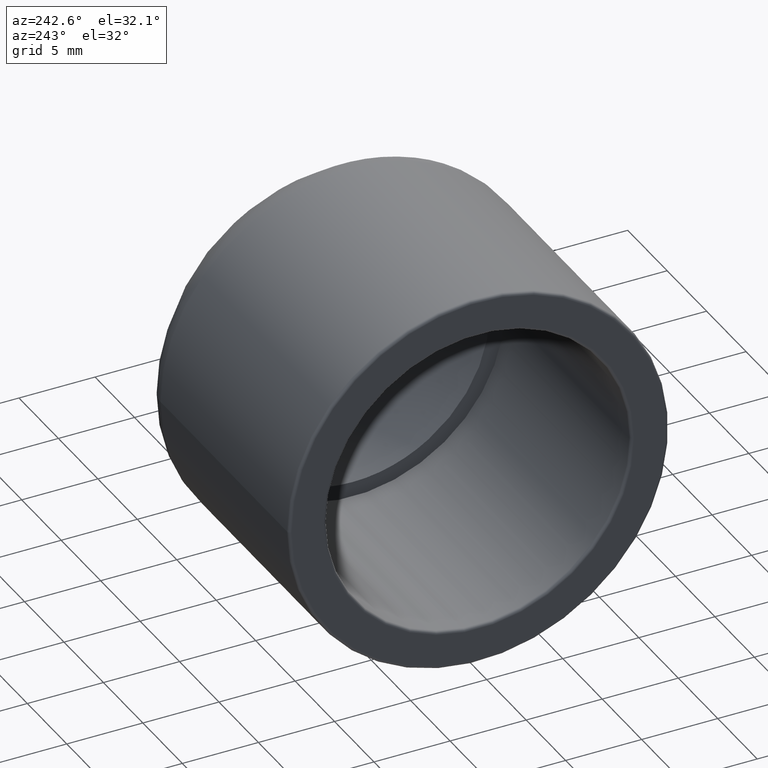
[diagram: clean part render]
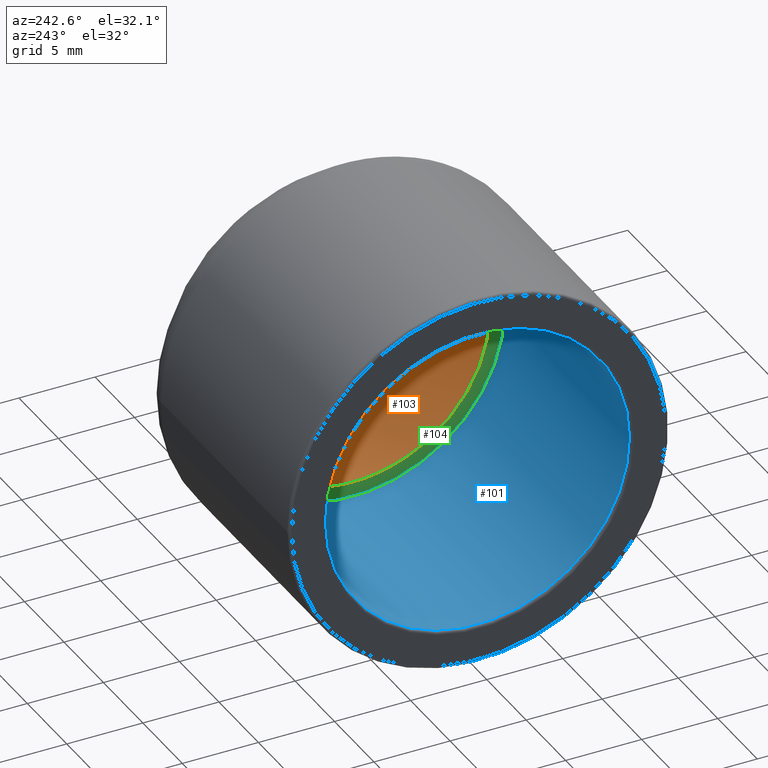
[diagram: same view with three faces highlighted in distinct colors, each labeled with its STEP entity id]
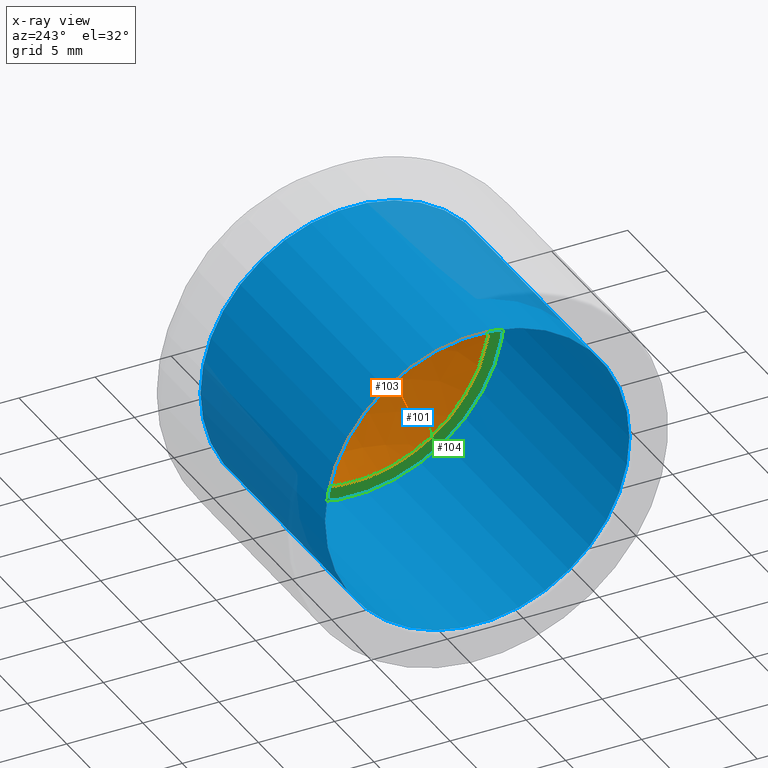
[diagram: x-ray of the same camera — body ghosted, the three highlighted faces saturated]
A machine part, auxiliary view with three faces highlighted in distinct colors.
The next image is the same camera in x-ray (body ghosted, the three faces saturated) — at least one of them is partly hidden behind the body in this view.
Their STEP definitions:

[orange] entity #103 — the highlighted spherical surface has radius 11.073 mm.
#18=SPHERICAL_SURFACE('',#121,11.0730058618058);
#35=FACE_OUTER_BOUND('',#50,.T.);
#50=EDGE_LOOP('',(#90));
#60=CIRCLE('',#122,9.);
#68=VERTEX_POINT('',#183);
#76=EDGE_CURVE('',#68,#68,#60,.T.);
#90=ORIENTED_EDGE('',*,*,#76,.F.);
#103=ADVANCED_FACE('',(#35),#18,.F.);
#121=AXIS2_PLACEMENT_3D('',#182,#154,#155);
#122=AXIS2_PLACEMENT_3D('',#184,#156,#157);
#154=DIRECTION('center_axis',(0.,0.,1.));
#155=DIRECTION('ref_axis',(1.,0.,0.));
#156=DIRECTION('center_axis',(1.,2.44854618096805E-16,0.));
#157=DIRECTION('ref_axis',(0.,0.,-1.));
#182=CARTESIAN_POINT('Origin',(-14.4506944444445,-1.76969966968453E-15,
0.));
#183=CARTESIAN_POINT('',(-8.,9.,0.));
#184=CARTESIAN_POINT('Origin',(-8.,-1.95883694477444E-15,0.));

[blue] entity #101 — the highlighted cylindrical surface (bore or boss wall) has radius 10 mm, axis along (1, 0, 0).
#20=CYLINDRICAL_SURFACE('',#118,10.);
#25=FACE_BOUND('',#47,.T.);
#33=FACE_OUTER_BOUND('',#46,.T.);
#46=EDGE_LOOP('',(#86));
#47=EDGE_LOOP('',(#87));
#56=CIRCLE('',#114,10.);
#59=CIRCLE('',#119,10.);
#64=VERTEX_POINT('',#171);
#67=VERTEX_POINT('',#179);
#72=EDGE_CURVE('',#64,#64,#56,.T.);
#75=EDGE_CURVE('',#67,#67,#59,.T.);
#86=ORIENTED_EDGE('',*,*,#75,.T.);
#87=ORIENTED_EDGE('',*,*,#72,.F.);
#101=ADVANCED_FACE('',(#33,#25),#20,.F.);
#114=AXIS2_PLACEMENT_3D('',#172,#140,#141);
#118=AXIS2_PLACEMENT_3D('',#178,#148,#149);
#119=AXIS2_PLACEMENT_3D('',#180,#150,#151);
#140=DIRECTION('center_axis',(1.,2.44854618096805E-16,0.));
#141=DIRECTION('ref_axis',(2.46330733588707E-16,-1.,1.83697019872103E-16));
#148=DIRECTION('center_axis',(1.,2.44854618096805E-16,0.));
#149=DIRECTION('ref_axis',(-2.66453525910038E-16,1.,0.));
#150=DIRECTION('center_axis',(1.,2.44854618096805E-16,0.));
#151=DIRECTION('ref_axis',(0.,0.,-1.));
#171=CARTESIAN_POINT('',(-23.8,9.99999999999999,-6.12323399573676E-16));
#172=CARTESIAN_POINT('Origin',(-23.8,-5.82753991070395E-15,0.));
#178=CARTESIAN_POINT('Origin',(-16.,-3.91767388954887E-15,0.));
#179=CARTESIAN_POINT('',(-8.,10.,0.));
#180=CARTESIAN_POINT('Origin',(-8.,-1.95883694477444E-15,0.));

[green] entity #104 — the highlighted planar face has unit normal (-1, -0, 0).
#16=PLANE('',#123);
#27=FACE_BOUND('',#52,.T.);
#36=FACE_OUTER_BOUND('',#51,.T.);
#51=EDGE_LOOP('',(#91));
#52=EDGE_LOOP('',(#92));
#59=CIRCLE('',#119,10.);
#60=CIRCLE('',#122,9.);
#67=VERTEX_POINT('',#179);
#68=VERTEX_POINT('',#183);
#75=EDGE_CURVE('',#67,#67,#59,.T.);
#76=EDGE_CURVE('',#68,#68,#60,.T.);
#91=ORIENTED_EDGE('',*,*,#75,.F.);
#92=ORIENTED_EDGE('',*,*,#76,.T.);
#104=ADVANCED_FACE('',(#36,#27),#16,.T.);
#119=AXIS2_PLACEMENT_3D('',#180,#150,#151);
#122=AXIS2_PLACEMENT_3D('',#184,#156,#157);
#123=AXIS2_PLACEMENT_3D('',#185,#158,#159);
#150=DIRECTION('center_axis',(1.,2.44854618096805E-16,0.));
#151=DIRECTION('ref_axis',(0.,0.,-1.));
#156=DIRECTION('center_axis',(1.,2.44854618096805E-16,0.));
#157=DIRECTION('ref_axis',(0.,0.,-1.));
#158=DIRECTION('center_axis',(-1.,-2.44854618096805E-16,0.));
#159=DIRECTION('ref_axis',(0.,0.,1.));
#179=CARTESIAN_POINT('',(-8.,10.,0.));
#180=CARTESIAN_POINT('Origin',(-8.,-1.95883694477444E-15,0.));
#183=CARTESIAN_POINT('',(-8.,9.,0.));
#184=CARTESIAN_POINT('Origin',(-8.,-1.95883694477444E-15,0.));
#185=CARTESIAN_POINT('Origin',(-8.,10.,0.));